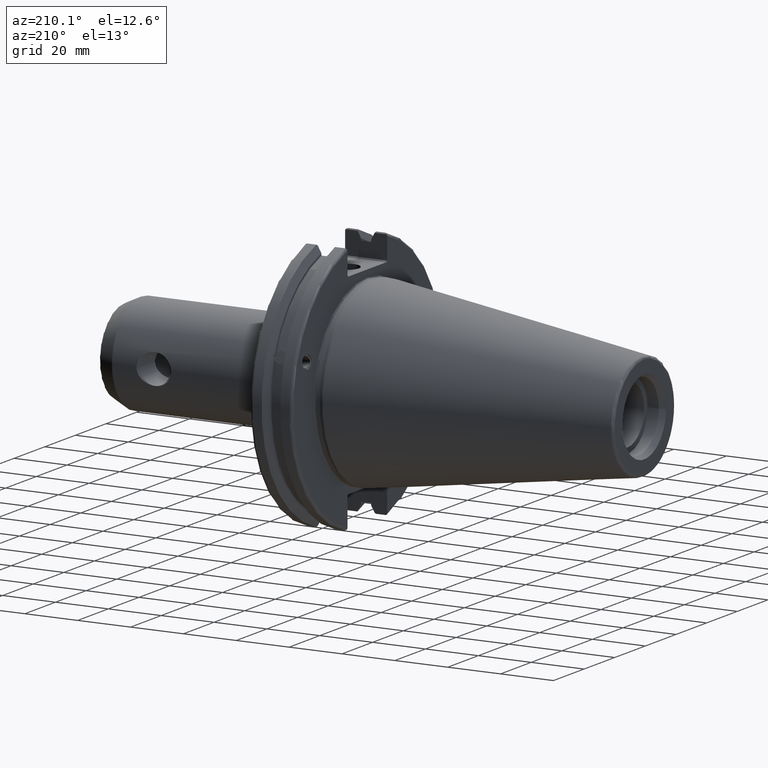
[diagram: clean part render]
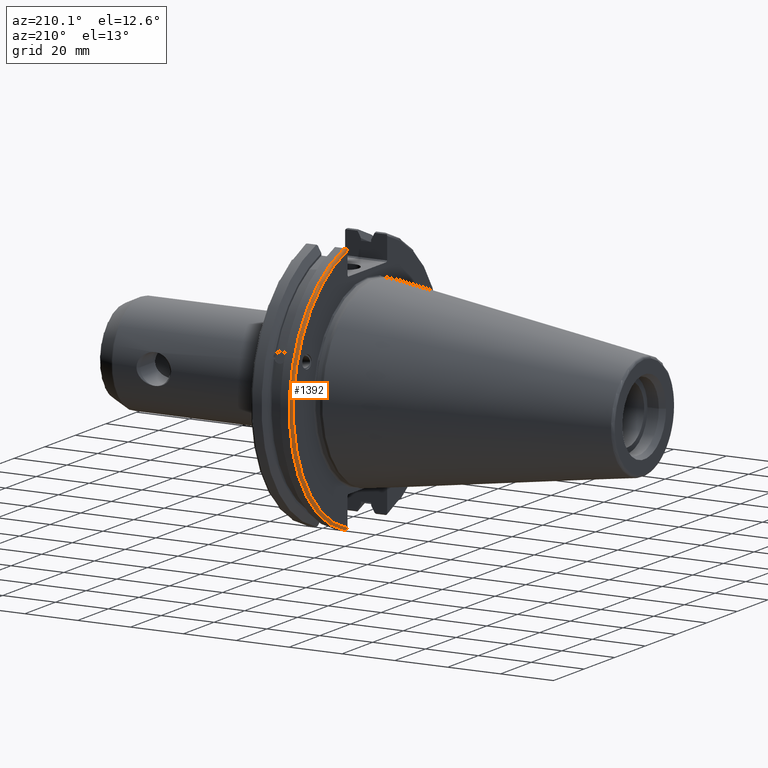
[diagram: same view with one face highlighted and labeled with its STEP entity id]
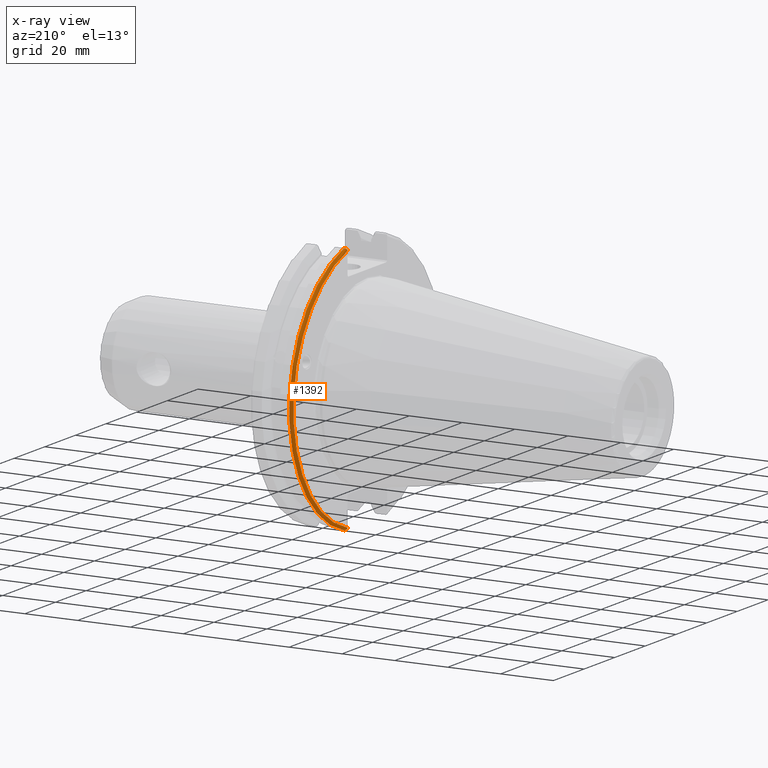
[diagram: x-ray of the same camera — body ghosted, the highlighted face saturated]
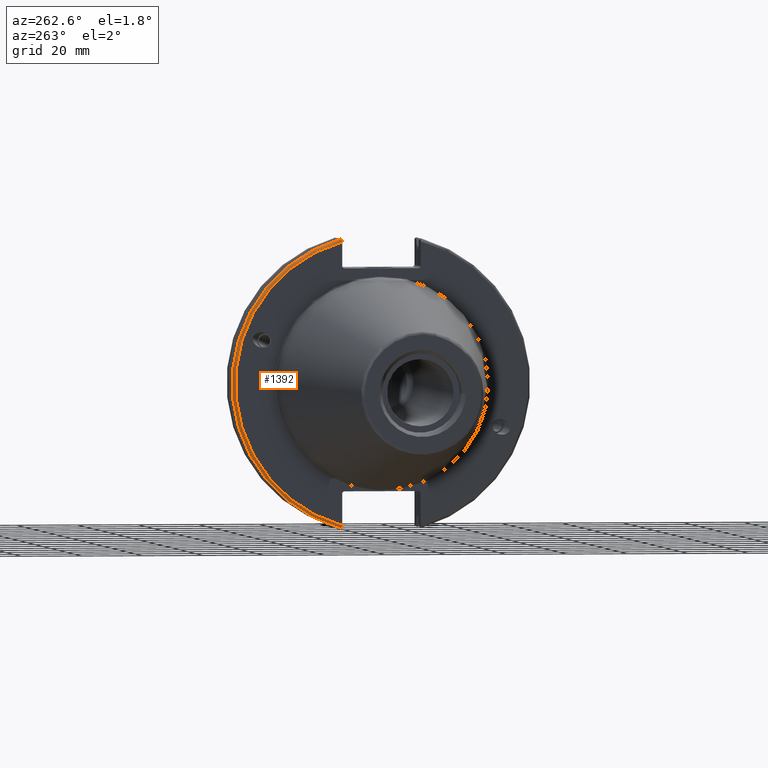
[diagram: same view with one face highlighted and labeled with its STEP entity id]
A machine part, auxiliary view. The second image highlights one B-rep face of the part: STEP entity #1392.
The next image is the same camera in x-ray: the body ghosted, the highlighted face saturated — about 0% of this face is hidden behind the body in this view.
A second angle (auxiliary view) of the same face is appended — the face is thin or edge-on in the first view.
In plain terms, the highlighted toroidal blend (fillet) surface has major radius 48.2125 mm and minor (blend) radius 1 mm.
Its self-contained STEP definition (entity closure, byte-faithful):
#88=TOROIDAL_SURFACE('',#1553,48.2125,1.);
#160=FACE_OUTER_BOUND('',#250,.T.);
#250=EDGE_LOOP('',(#1181,#1182,#1183,#1184,#1185,#1186));
#335=CIRCLE('',#1536,48.2125);
#341=CIRCLE('',#1554,49.2125);
#553=B_SPLINE_CURVE_WITH_KNOTS('',3,(#2508,#2509,#2510,#2511,#2512,#2513),
 .UNSPECIFIED.,.F.,.F.,(4,2,4),(0.0976892167532858,0.112000071948292,0.150881870548587),
 .UNSPECIFIED.);
#562=B_SPLINE_CURVE_WITH_KNOTS('',3,(#2625,#2626,#2627,#2628,#2629,#2630,
#2631,#2632),.UNSPECIFIED.,.F.,.F.,(4,2,2,4),(-0.104075769062722,-0.0730268503455479,
-0.0343639873656265,0.),.UNSPECIFIED.);
#563=B_SPLINE_CURVE_WITH_KNOTS('',3,(#2635,#2636,#2637,#2638,#2639,#2640,
#2641,#2642),.UNSPECIFIED.,.F.,.F.,(4,2,2,4),(0.,0.0343639873656266,0.0730268503455482,
0.104075769062722),.UNSPECIFIED.);
#564=B_SPLINE_CURVE_WITH_KNOTS('',3,(#2643,#2644,#2645,#2646,#2647,#2648),
 .UNSPECIFIED.,.F.,.F.,(4,2,4),(0.452859340315923,0.491741138916218,0.506051994111224),
 .UNSPECIFIED.);
#656=VERTEX_POINT('',#2446);
#657=VERTEX_POINT('',#2448);
#669=VERTEX_POINT('',#2507);
#685=VERTEX_POINT('',#2623);
#686=VERTEX_POINT('',#2624);
#687=VERTEX_POINT('',#2633);
#822=EDGE_CURVE('',#657,#656,#335,.T.);
#839=EDGE_CURVE('',#669,#657,#553,.T.);
#868=EDGE_CURVE('',#685,#686,#562,.T.);
#869=EDGE_CURVE('',#686,#687,#341,.T.);
#870=EDGE_CURVE('',#687,#669,#563,.T.);
#871=EDGE_CURVE('',#656,#685,#564,.T.);
#1181=ORIENTED_EDGE('',*,*,#868,.T.);
#1182=ORIENTED_EDGE('',*,*,#869,.T.);
#1183=ORIENTED_EDGE('',*,*,#870,.T.);
#1184=ORIENTED_EDGE('',*,*,#839,.T.);
#1185=ORIENTED_EDGE('',*,*,#822,.T.);
#1186=ORIENTED_EDGE('',*,*,#871,.T.);
#1392=ADVANCED_FACE('',(#160),#88,.T.);
#1536=AXIS2_PLACEMENT_3D('',#2449,#1828,#1829);
#1553=AXIS2_PLACEMENT_3D('',#2622,#1883,#1884);
#1554=AXIS2_PLACEMENT_3D('',#2634,#1885,#1886);
#1828=DIRECTION('center_axis',(1.,0.,0.));
#1829=DIRECTION('ref_axis',(0.,1.,-6.12323399573677E-17));
#1883=DIRECTION('center_axis',(1.,0.,0.));
#1884=DIRECTION('ref_axis',(0.,0.,-1.));
#1885=DIRECTION('center_axis',(-1.,0.,0.));
#1886=DIRECTION('ref_axis',(0.,1.,-6.12323399573677E-17));
#2446=CARTESIAN_POINT('',(3.175,12.95,46.4407434937254));
#2448=CARTESIAN_POINT('',(3.175,12.95,-46.4407434937254));
#2449=CARTESIAN_POINT('Origin',(3.175,0.,0.));
#2507=CARTESIAN_POINT('',(3.31949794294344,12.95,-46.9780755322918));
#2508=CARTESIAN_POINT('Ctrl Pts',(3.31949794294344,12.95,-46.9780755322918));
#2509=CARTESIAN_POINT('Ctrl Pts',(3.29341556483839,12.95,-46.9333752207329));
#2510=CARTESIAN_POINT('Ctrl Pts',(3.27115672912336,12.95,-46.887363294568));
#2511=CARTESIAN_POINT('Ctrl Pts',(3.20453530071253,12.95,-46.7230464903732));
#2512=CARTESIAN_POINT('Ctrl Pts',(3.175,12.95,-46.5703494890597));
#2513=CARTESIAN_POINT('Ctrl Pts',(3.175,12.95,-46.4407434937254));
#2622=CARTESIAN_POINT('Origin',(4.175,0.,0.));
#2623=CARTESIAN_POINT('',(3.31949794294344,12.95,46.9780755322918));
#2624=CARTESIAN_POINT('',(4.175,13.4317035994433,47.3440544806494));
#2625=CARTESIAN_POINT('Ctrl Pts',(3.31949794294344,12.95,46.9780755322918));
#2626=CARTESIAN_POINT('Ctrl Pts',(3.36785032278754,13.0300321736484,47.0388807469102));
#2627=CARTESIAN_POINT('Ctrl Pts',(3.43235971798504,13.1083611826073,47.0983919657547));
#2628=CARTESIAN_POINT('Ctrl Pts',(3.58507512107923,13.2478194810695,47.2043467509586));
#2629=CARTESIAN_POINT('Ctrl Pts',(3.70638116490965,13.3242014686233,47.2623787015413));
#2630=CARTESIAN_POINT('Ctrl Pts',(3.92661103245834,13.4067722493645,47.3251126473446));
#2631=CARTESIAN_POINT('Ctrl Pts',(4.06045337544791,13.4317035994433,47.3440544806494));
#2632=CARTESIAN_POINT('Ctrl Pts',(4.175,13.4317035994433,47.3440544806494));
#2633=CARTESIAN_POINT('',(4.175,13.4317035994433,-47.3440544806494));
#2634=CARTESIAN_POINT('Origin',(4.175,0.,0.));
#2635=CARTESIAN_POINT('Ctrl Pts',(4.175,13.4317035994433,-47.3440544806494));
#2636=CARTESIAN_POINT('Ctrl Pts',(4.06045337544791,13.4317035994433,-47.3440544806494));
#2637=CARTESIAN_POINT('Ctrl Pts',(3.92661103245834,13.4067722493645,-47.3251126473446));
#2638=CARTESIAN_POINT('Ctrl Pts',(3.70638116490964,13.3242014686232,-47.2623787015413));
#2639=CARTESIAN_POINT('Ctrl Pts',(3.58507512107923,13.2478194810695,-47.2043467509586));
#2640=CARTESIAN_POINT('Ctrl Pts',(3.43235971798504,13.1083611826073,-47.0983919657547));
#2641=CARTESIAN_POINT('Ctrl Pts',(3.36785032278754,13.0300321736484,-47.0388807469102));
#2642=CARTESIAN_POINT('Ctrl Pts',(3.31949794294344,12.95,-46.9780755322918));
#2643=CARTESIAN_POINT('Ctrl Pts',(3.175,12.95,46.4407434937254));
#2644=CARTESIAN_POINT('Ctrl Pts',(3.175,12.95,46.5703494890597));
#2645=CARTESIAN_POINT('Ctrl Pts',(3.20453530071253,12.95,46.7230464903732));
#2646=CARTESIAN_POINT('Ctrl Pts',(3.27115672912336,12.95,46.887363294568));
#2647=CARTESIAN_POINT('Ctrl Pts',(3.29341556483839,12.95,46.9333752207329));
#2648=CARTESIAN_POINT('Ctrl Pts',(3.31949794294344,12.95,46.9780755322918));